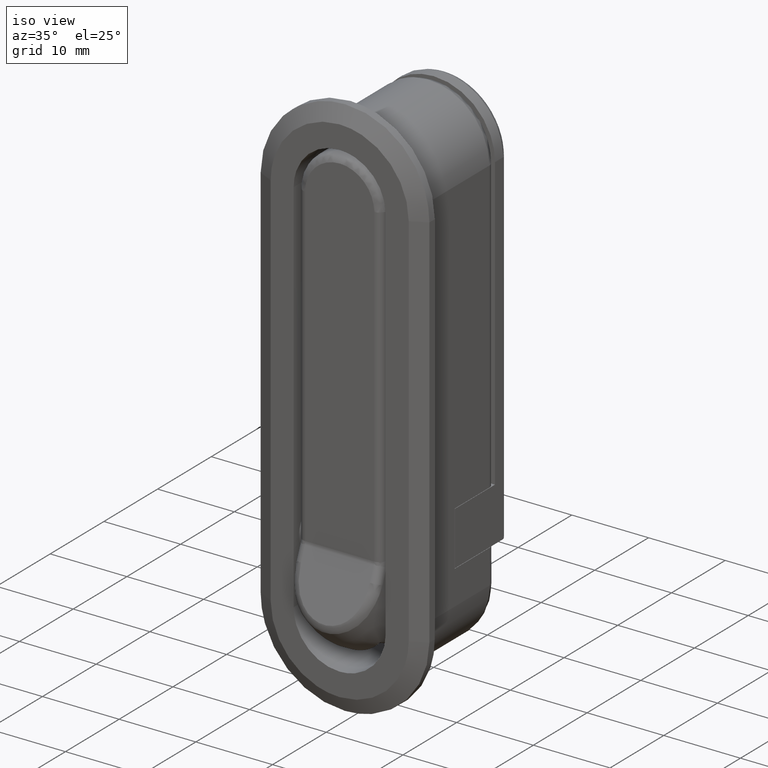
[diagram: clean part render]
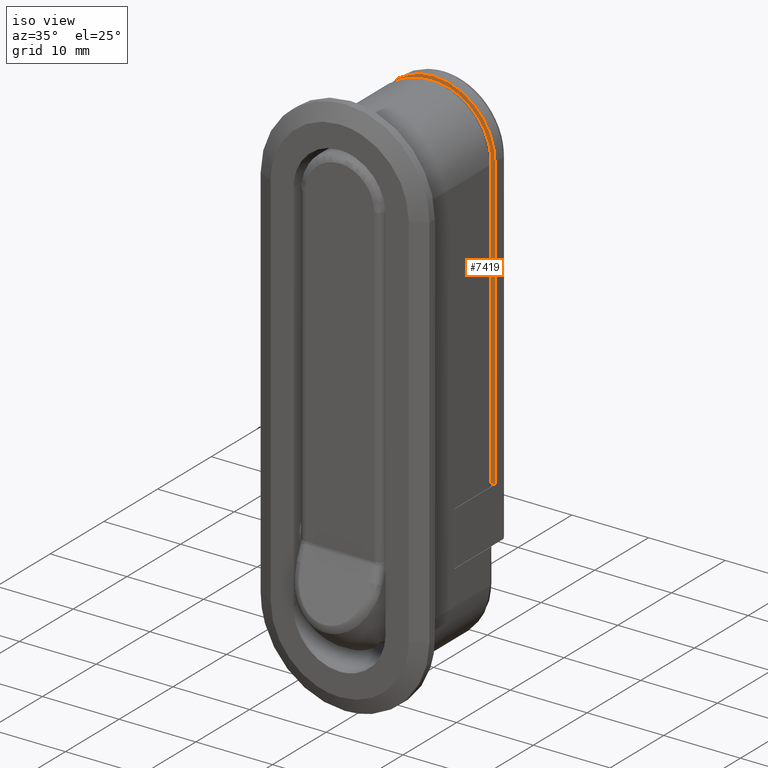
[diagram: same view with one face highlighted and labeled with its STEP entity id]
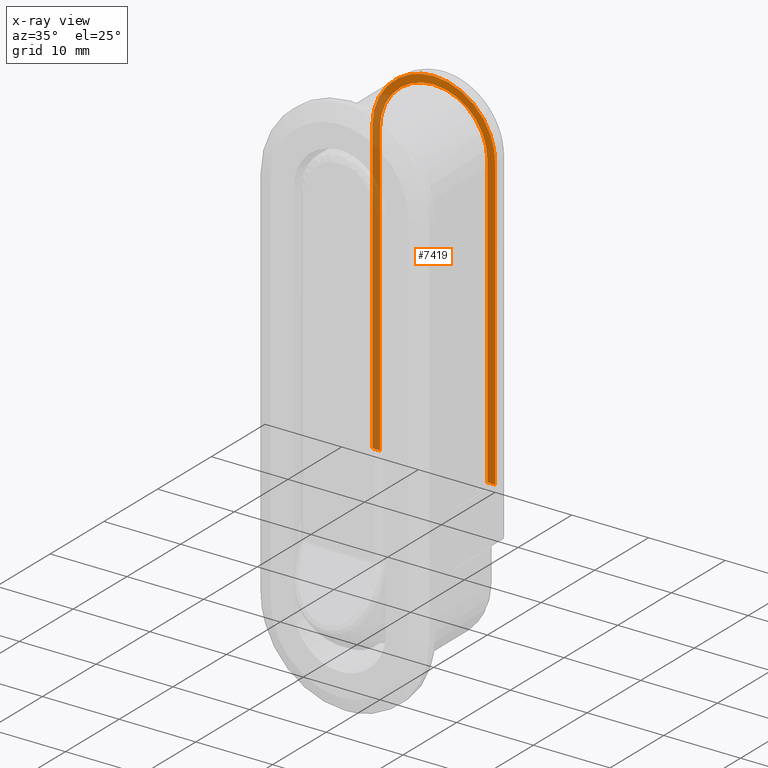
[diagram: x-ray of the same camera — body ghosted, the highlighted face saturated]
A machine part, iso view. The second image highlights one B-rep face of the part: STEP entity #7419.
The next image is the same camera in x-ray: the body ghosted, the highlighted face saturated — about 43% of this face is hidden behind the body in this view.
In plain terms, the highlighted face is a freeform B-spline surface patch.
Its self-contained STEP definition (entity closure, byte-faithful):
#5050=CARTESIAN_POINT('',(7.999999999999560,9.999999999976490,3.499999999487161));
#5051=VERTEX_POINT('',#5050);
#5057=CARTESIAN_POINT('',(6.999999999999561,9.999999999976490,3.499999999487161));
#5058=VERTEX_POINT('',#5057);
#5059=CARTESIAN_POINT('',(6.999999999999561,9.999999999976490,3.499999999487161));
#5060=CARTESIAN_POINT('',(7.999999999999560,9.999999999976490,3.499999999487161));
#5061=QUASI_UNIFORM_CURVE('',1,(#5059,#5060),.UNSPECIFIED.,.F.,.U.);
#5062=EDGE_CURVE('',#5058,#5051,#5061,.T.);
#6026=CARTESIAN_POINT('',(7.999999999999770,9.999999999976469,41.500000000014012));
#6027=VERTEX_POINT('',#6026);
#6033=CARTESIAN_POINT('',(7.999999999999560,9.999999999976490,3.499999999487161));
#6034=CARTESIAN_POINT('',(7.999999999999770,9.999999999976469,41.500000000014012));
#6035=QUASI_UNIFORM_CURVE('',1,(#6033,#6034),.UNSPECIFIED.,.F.,.U.);
#6036=EDGE_CURVE('',#5051,#6027,#6035,.T.);
#6358=CARTESIAN_POINT('',(6.999999999999771,9.999999999976469,41.500000000013898));
#6359=VERTEX_POINT('',#6358);
#6360=CARTESIAN_POINT('',(6.999999999999561,9.999999999976490,3.499999999487161));
#6361=CARTESIAN_POINT('',(6.999999999999771,9.999999999976469,41.500000000013898));
#6362=QUASI_UNIFORM_CURVE('',1,(#6360,#6361),.UNSPECIFIED.,.F.,.U.);
#6363=EDGE_CURVE('',#5058,#6359,#6362,.T.);
#6516=CARTESIAN_POINT('',(-6.999999999999569,9.999999999976490,41.500000000019249));
#6517=VERTEX_POINT('',#6516);
#6523=CARTESIAN_POINT('',(-6.999999999999560,9.999999999976490,3.499999999487161));
#6524=VERTEX_POINT('',#6523);
#6525=CARTESIAN_POINT('',(-6.999999999999560,9.999999999976490,3.499999999487161));
#6526=CARTESIAN_POINT('',(-6.999999999999569,9.999999999976490,41.500000000019249));
#6527=QUASI_UNIFORM_CURVE('',1,(#6525,#6526),.UNSPECIFIED.,.F.,.U.);
#6528=EDGE_CURVE('',#6524,#6517,#6527,.T.);
#7290=CARTESIAN_POINT('',(-7.999999999999559,9.999999999976490,3.499999999487161));
#7291=VERTEX_POINT('',#7290);
#7303=CARTESIAN_POINT('',(-6.999999999999560,9.999999999976490,3.499999999487161));
#7304=CARTESIAN_POINT('',(-7.999999999999559,9.999999999976490,3.499999999487161));
#7305=QUASI_UNIFORM_CURVE('',1,(#7303,#7304),.UNSPECIFIED.,.F.,.U.);
#7306=EDGE_CURVE('',#6524,#7291,#7305,.T.);
#7329=CARTESIAN_POINT('',(0.000001159536161,9.999999999976469,48.500000000013678));
#7330=VERTEX_POINT('',#7329);
#7331=CARTESIAN_POINT('',(0.000001159536161,9.999999999976469,48.500000000013678));
#7332=CARTESIAN_POINT('',(0.486785217442843,9.999999999976470,48.500073523021278));
#7333=CARTESIAN_POINT('',(1.460326172041409,9.999999999976508,48.398048297555292));
#7334=CARTESIAN_POINT('',(2.775157578306918,9.999999999976438,47.972646731674587));
#7335=CARTESIAN_POINT('',(4.034108759233456,9.999999999976451,47.279751925297610));
#7336=CARTESIAN_POINT('',(5.065518636867916,9.999999999976573,46.401058951130992));
#7337=CARTESIAN_POINT('',(5.861128321430505,9.999999999976339,45.381412650136440));
#7338=CARTESIAN_POINT('',(6.387217369010338,9.999999999976742,44.425560531861613));
#7339=CARTESIAN_POINT('',(6.857455414678292,9.999999999976202,43.160663444351698));
#7340=CARTESIAN_POINT('',(7.000281392182671,9.999999999976625,42.158623521440127));
#7341=CARTESIAN_POINT('',(6.999999999999771,9.999999999976469,41.500000000013898));
#7342=B_SPLINE_CURVE_WITH_KNOTS('',3,(#7331,#7332,#7333,#7334,#7335,#7336,#7337,#7338,#7339,#7340,#7341),.UNSPECIFIED.,.F.,.U.,(4,1,1,1,1,1,1,1,4),(0.000000043380361,1.460345308328735,2.920720049634198,4.123378523448720,5.755505732755850,6.958179444520583,7.989018486956331,9.019869720968625,10.995642626588390),.UNSPECIFIED.);
#7343=EDGE_CURVE('',#7330,#6359,#7342,.T.);
#7345=CARTESIAN_POINT('',(-6.999999999999569,9.999999999976490,41.500000000019249));
#7346=CARTESIAN_POINT('',(-7.000034887858315,9.999999999976525,41.900879579576859));
#7347=CARTESIAN_POINT('',(-6.933387995792391,9.999999999976449,42.673985740836820));
#7348=CARTESIAN_POINT('',(-6.604585698108468,9.999999999976525,43.953817912742387));
#7349=CARTESIAN_POINT('',(-6.017726171578431,9.999999999976462,45.175111351501137));
#7350=CARTESIAN_POINT('',(-5.069901736372318,9.999999999976488,46.405142658557942));
#7351=CARTESIAN_POINT('',(-3.944100769495252,9.999999999976502,47.352479029338923));
#7352=CARTESIAN_POINT('',(-2.667042918210126,9.999999999976410,48.014920655441827));
#7353=CARTESIAN_POINT('',(-1.374424046564432,9.999999999976515,48.407036100205239));
#7354=CARTESIAN_POINT('',(-0.486784369366729,9.999999999976522,48.500062627239153));
#7355=CARTESIAN_POINT('',(0.000001159536161,9.999999999976469,48.500000000013678));
#7356=B_SPLINE_CURVE_WITH_KNOTS('',3,(#7345,#7346,#7347,#7348,#7349,#7350,#7351,#7352,#7353,#7354,#7355),.UNSPECIFIED.,.F.,.U.,(4,1,1,1,1,1,1,1,4),(0.000000042970292,1.202639491553237,2.319388762254139,3.951560226713982,5.240136313149019,6.958180272390131,8.332636814461381,9.535285650990565,10.995643933660880),.UNSPECIFIED.);
#7357=EDGE_CURVE('',#6517,#7330,#7356,.T.);
#7366=CARTESIAN_POINT('',(8.799199968988633,9.999999999976492,51.797699910883132));
#7367=CARTESIAN_POINT('',(8.799199968988633,9.999999999976492,1.202298854801631));
#7368=CARTESIAN_POINT('',(-8.799200398141876,9.999999999976492,51.797699910883132));
#7369=CARTESIAN_POINT('',(-8.799200398141876,9.999999999976490,1.202298854801631));
#7370=B_SPLINE_SURFACE_WITH_KNOTS('',1,1,((#7366,#7368),(#7367,#7369)),.UNSPECIFIED.,.F.,.F.,.U.,(2,2),(2,2),(0.0,50.595401056081499),(0.0,17.598400367130509),.UNSPECIFIED.);
#7371=ORIENTED_EDGE('',*,*,#6036,.T.);
#7372=CARTESIAN_POINT('',(0.000000526767151,9.999999999976470,49.500000000013763));
#7373=VERTEX_POINT('',#7372);
#7374=CARTESIAN_POINT('',(0.000000526767151,9.999999999976470,49.500000000013763));
#7375=CARTESIAN_POINT('',(0.523601338546083,9.999999999976446,49.500065283772308));
#7376=CARTESIAN_POINT('',(1.374420067417402,9.999999999976501,49.416155673310378));
#7377=CARTESIAN_POINT('',(2.642577326557789,9.999999999976458,49.081900243648938));
#7378=CARTESIAN_POINT('',(3.910578023974644,9.999999999976488,48.538466232903907));
#7379=CARTESIAN_POINT('',(5.105132064680641,9.999999999976438,47.718884783854328));
#7380=CARTESIAN_POINT('',(6.126015633510852,9.999999999976506,46.697904557643767));
#7381=CARTESIAN_POINT('',(6.953425289697572,9.999999999976428,45.553265637180857));
#7382=CARTESIAN_POINT('',(7.536617482317375,9.999999999976312,44.300415335508653));
#7383=CARTESIAN_POINT('',(7.912913657985046,9.999999999976375,42.907138535712050));
#7384=CARTESIAN_POINT('',(8.000073775770900,9.999999999976682,42.023601134354656));
#7385=CARTESIAN_POINT('',(7.999999999999770,9.999999999976469,41.500000000014012));
#7386=B_SPLINE_CURVE_WITH_KNOTS('',3,(#7374,#7375,#7376,#7377,#7378,#7379,#7380,#7381,#7382,#7383,#7384,#7385),.UNSPECIFIED.,.F.,.U.,(4,1,1,1,1,1,1,1,1,4),(0.000000021414449,1.570796055824442,2.552560346439268,3.927019905795900,5.694189280838621,6.872255561041112,8.246726346274562,9.915718828710613,10.995651557158681,12.566449166104190),.UNSPECIFIED.);
#7387=EDGE_CURVE('',#7373,#6027,#7386,.T.);
#7388=ORIENTED_EDGE('',*,*,#7387,.F.);
#7389=CARTESIAN_POINT('',(-7.999999999999569,9.999999999976490,41.500000000019249));
#7390=VERTEX_POINT('',#7389);
#7391=CARTESIAN_POINT('',(-7.999999999999569,9.999999999976490,41.500000000019249));
#7392=CARTESIAN_POINT('',(-8.000043815550235,9.999999999976479,41.958151246063188));
#7393=CARTESIAN_POINT('',(-7.926697063355567,9.999999999976494,42.808983532760692));
#7394=CARTESIAN_POINT('',(-7.623731542183907,9.999999999976506,44.018539573045317));
#7395=CARTESIAN_POINT('',(-7.096386048614069,9.999999999976469,45.291859527356962));
#7396=CARTESIAN_POINT('',(-6.306402238003849,9.999999999976465,46.506184966868332));
#7397=CARTESIAN_POINT('',(-5.297020316129107,9.999999999976547,47.540518520919910));
#7398=CARTESIAN_POINT('',(-4.216421398927669,9.999999999976426,48.341956820616581));
#7399=CARTESIAN_POINT('',(-3.162943330783361,9.999999999976524,48.880368791027067));
#7400=CARTESIAN_POINT('',(-1.734301215647055,9.999999999976474,49.362091843520048));
#7401=CARTESIAN_POINT('',(-0.719981583190396,9.999999999976465,49.500256501903600));
#7402=CARTESIAN_POINT('',(0.000000526767151,9.999999999976470,49.500000000013763));
#7403=B_SPLINE_CURVE_WITH_KNOTS('',3,(#7391,#7392,#7393,#7394,#7395,#7396,#7397,#7398,#7399,#7400,#7401,#7402),.UNSPECIFIED.,.F.,.U.,(4,1,1,1,1,1,1,1,1,4),(0.000000021217174,1.374454083023394,2.552560466934599,3.730670272415042,5.497841824167007,6.872255885489816,8.050380988594345,9.523012942456871,10.406599888294080,12.566449759894210),.UNSPECIFIED.);
#7404=EDGE_CURVE('',#7390,#7373,#7403,.T.);
#7405=ORIENTED_EDGE('',*,*,#7404,.F.);
#7406=CARTESIAN_POINT('',(-7.999999999999559,9.999999999976490,3.499999999487161));
#7407=CARTESIAN_POINT('',(-7.999999999999569,9.999999999976490,41.500000000019249));
#7408=QUASI_UNIFORM_CURVE('',1,(#7406,#7407),.UNSPECIFIED.,.F.,.U.);
#7409=EDGE_CURVE('',#7291,#7390,#7408,.T.);
#7410=ORIENTED_EDGE('',*,*,#7409,.F.);
#7411=ORIENTED_EDGE('',*,*,#7306,.F.);
#7412=ORIENTED_EDGE('',*,*,#6528,.T.);
#7413=ORIENTED_EDGE('',*,*,#7357,.T.);
#7414=ORIENTED_EDGE('',*,*,#7343,.T.);
#7415=ORIENTED_EDGE('',*,*,#6363,.F.);
#7416=ORIENTED_EDGE('',*,*,#5062,.T.);
#7417=EDGE_LOOP('',(#7371,#7388,#7405,#7410,#7411,#7412,#7413,#7414,#7415,#7416));
#7418=FACE_OUTER_BOUND('',#7417,.T.);
#7419=ADVANCED_FACE('',(#7418),#7370,.F.);